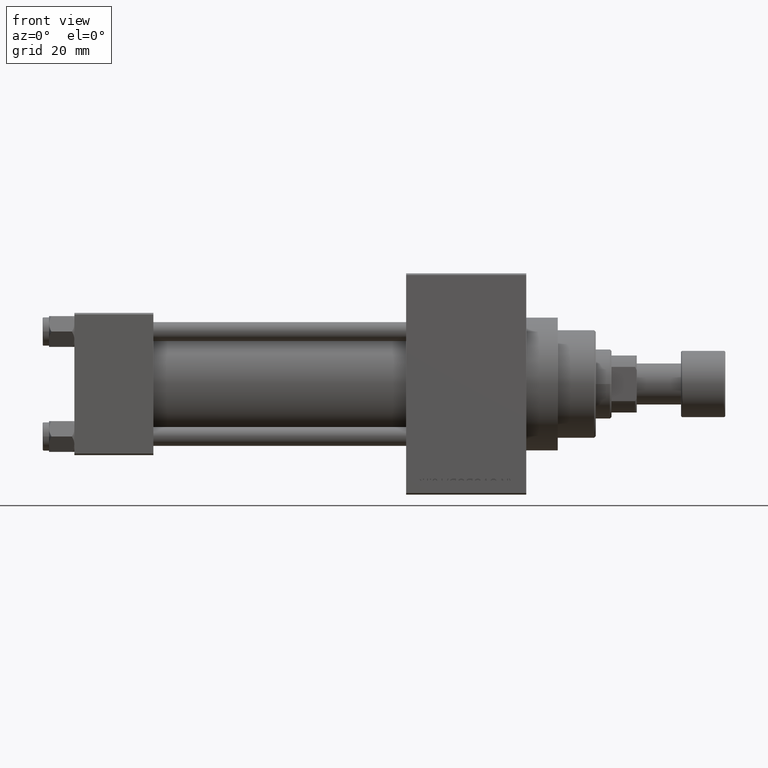
[diagram: clean part render]
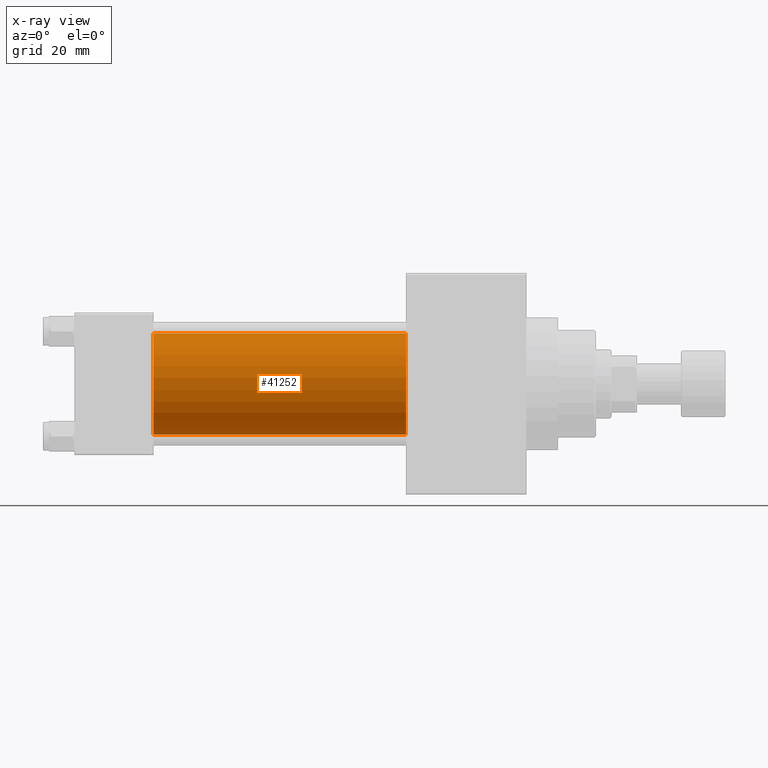
[diagram: x-ray — body ghosted, one internal face saturated and labeled with its STEP entity id]
A machine part, front view, then the same camera in x-ray: the body is ghosted and one INTERNAL B-rep face — a face not visible from any outside direction — is saturated and labeled: STEP entity #41252.
In plain terms, the highlighted cylindrical surface (partial cylindrical patch) has radius 16 mm, axis along (-1, -0, -0).
Its self-contained STEP definition (entity closure, byte-faithful):
#890 = CARTESIAN_POINT ( 'NONE',  ( 105.0000000000000142, -2.602085213965210642E-15, 0.000000000000000000 ) ) ;
#1094 = DIRECTION ( 'NONE',  ( 0.000000000000000000, 0.000000000000000000, -1.000000000000000000 ) ) ;
#2705 = CARTESIAN_POINT ( 'NONE',  ( 25.00000000000000000, -2.602085213965210642E-15, 16.00000000000000000 ) ) ;
#2844 = CARTESIAN_POINT ( 'NONE',  ( 25.00000000000000000, -6.426503353294456087E-16, -16.00000000000000000 ) ) ;
#5701 = CYLINDRICAL_SURFACE ( 'NONE', #27525, 16.00000000000000000 ) ;
#7263 = CARTESIAN_POINT ( 'NONE',  ( 105.0000000000000142, -2.602085213965210642E-15, 16.00000000000000000 ) ) ;
#8841 = VECTOR ( 'NONE', #43962, 1000.000000000000000 ) ;
#9989 = EDGE_CURVE ( 'NONE', #40227, #19017, #27585, .T. ) ;
#10060 = CARTESIAN_POINT ( 'NONE',  ( 105.0000000000000142, -2.602085213965210642E-15, 16.00000000000000000 ) ) ;
#12036 = AXIS2_PLACEMENT_3D ( 'NONE', #26352, #12639, #41975 ) ;
#12154 = DIRECTION ( 'NONE',  ( 1.000000000000000000, 0.000000000000000000, 0.000000000000000000 ) ) ;
#12398 = VERTEX_POINT ( 'NONE', #2705 ) ;
#12639 = DIRECTION ( 'NONE',  ( 1.000000000000000000, 0.000000000000000000, 0.000000000000000000 ) ) ;
#13195 = ORIENTED_EDGE ( 'NONE', *, *, #29888, .T. ) ;
#15548 = DIRECTION ( 'NONE',  ( -1.000000000000000000, -0.000000000000000000, -0.000000000000000000 ) ) ;
#15848 = ORIENTED_EDGE ( 'NONE', *, *, #42818, .F. ) ;
#16163 = ORIENTED_EDGE ( 'NONE', *, *, #9989, .T. ) ;
#17748 = VERTEX_POINT ( 'NONE', #2844 ) ;
#18060 = EDGE_LOOP ( 'NONE', ( #16163, #13195, #15848, #26415 ) ) ;
#19017 = VERTEX_POINT ( 'NONE', #47504 ) ;
#21940 = LINE ( 'NONE', #7263, #41790 ) ;
#22420 = DIRECTION ( 'NONE',  ( -1.000000000000000000, -0.000000000000000000, -0.000000000000000000 ) ) ;
#23704 = CARTESIAN_POINT ( 'NONE',  ( 105.0000000000000142, -2.602085213965210642E-15, 0.000000000000000000 ) ) ;
#26352 = CARTESIAN_POINT ( 'NONE',  ( 25.00000000000000000, -2.602085213965210642E-15, 0.000000000000000000 ) ) ;
#26415 = ORIENTED_EDGE ( 'NONE', *, *, #28678, .F. ) ;
#27525 = AXIS2_PLACEMENT_3D ( 'NONE', #890, #15548, #41284 ) ;
#27585 = CIRCLE ( 'NONE', #38346, 16.00000000000000000 ) ;
#28678 = EDGE_CURVE ( 'NONE', #40227, #12398, #21940, .T. ) ;
#29541 = LINE ( 'NONE', #43729, #8841 ) ;
#29888 = EDGE_CURVE ( 'NONE', #19017, #17748, #29541, .T. ) ;
#32774 = CIRCLE ( 'NONE', #12036, 16.00000000000000000 ) ;
#38346 = AXIS2_PLACEMENT_3D ( 'NONE', #23704, #12154, #1094 ) ;
#38647 = FACE_OUTER_BOUND ( 'NONE', #18060, .T. ) ;
#40227 = VERTEX_POINT ( 'NONE', #10060 ) ;
#41252 = ADVANCED_FACE ( 'NONE', ( #38647 ), #5701, .F. ) ;
#41284 = DIRECTION ( 'NONE',  ( 0.000000000000000000, 0.000000000000000000, 1.000000000000000000 ) ) ;
#41790 = VECTOR ( 'NONE', #22420, 1000.000000000000000 ) ;
#41975 = DIRECTION ( 'NONE',  ( 0.000000000000000000, 0.000000000000000000, -1.000000000000000000 ) ) ;
#42818 = EDGE_CURVE ( 'NONE', #12398, #17748, #32774, .T. ) ;
#43729 = CARTESIAN_POINT ( 'NONE',  ( 105.0000000000000142, -6.426503353294456087E-16, -16.00000000000000000 ) ) ;
#43962 = DIRECTION ( 'NONE',  ( -1.000000000000000000, -0.000000000000000000, -0.000000000000000000 ) ) ;
#47504 = CARTESIAN_POINT ( 'NONE',  ( 105.0000000000000142, -6.426503353294456087E-16, -16.00000000000000000 ) ) ;